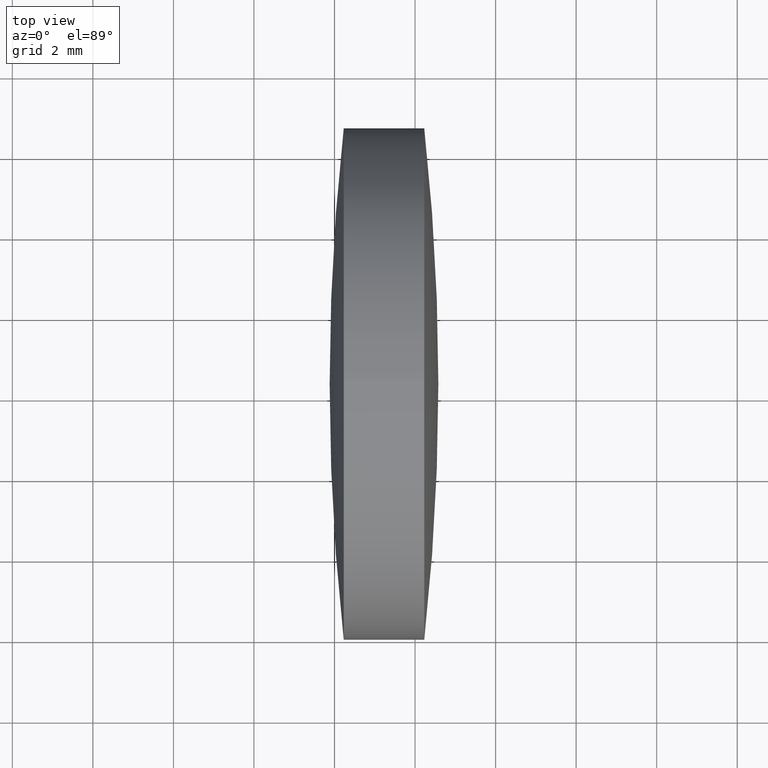
[diagram: clean part render]
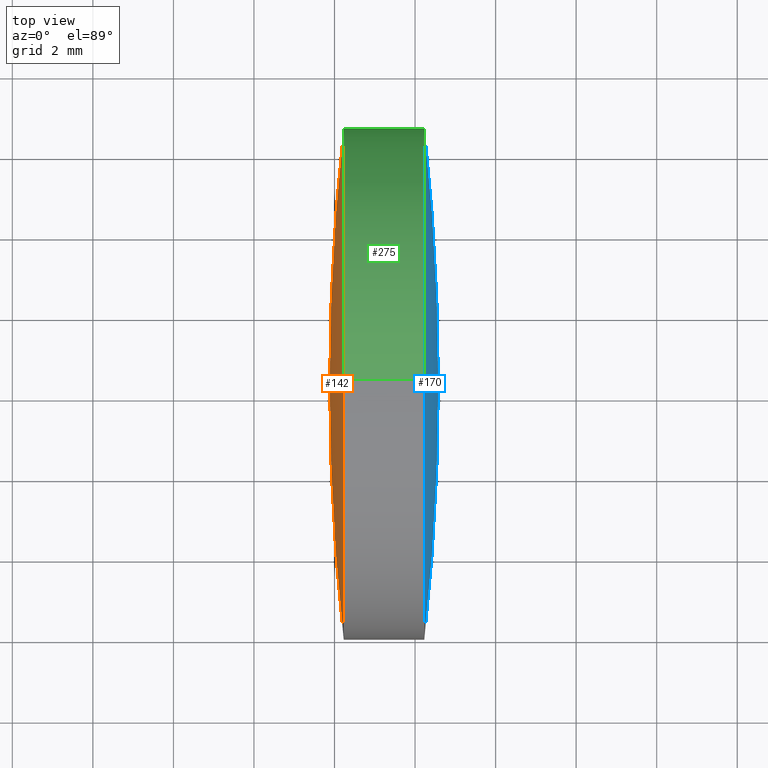
[diagram: same view with three faces highlighted in distinct colors, each labeled with its STEP entity id]
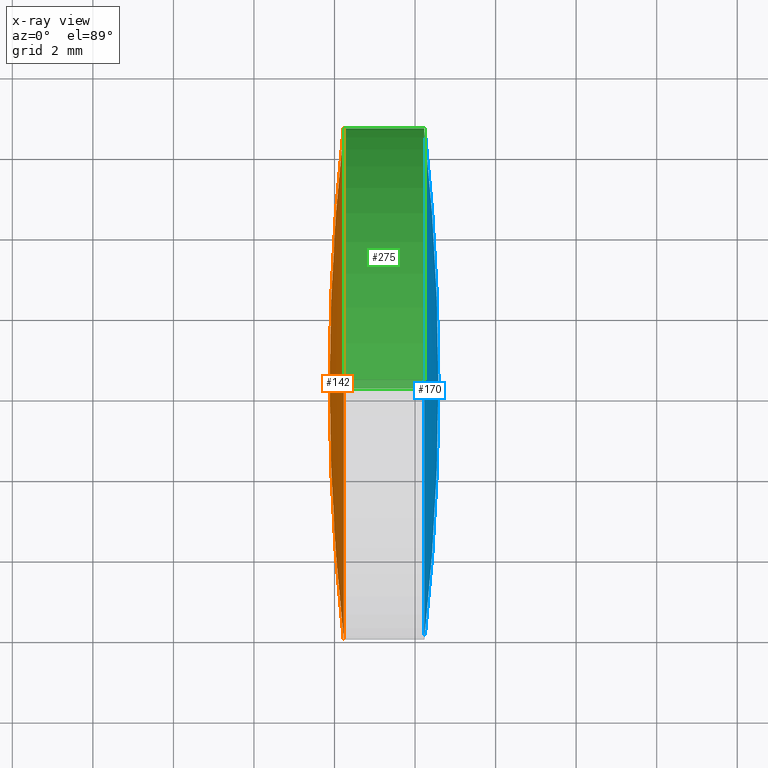
[diagram: x-ray of the same camera — body ghosted, the three highlighted faces saturated]
A machine part, top view with three faces highlighted in distinct colors.
The next image is the same camera in x-ray (body ghosted, the three faces saturated) — at least one of them is partly hidden behind the body in this view.
Their STEP definitions:

[orange] entity #142 — the highlighted spherical surface has radius 57.8123 mm.
#1 = EDGE_CURVE ( 'NONE', #294, #84, #189, .T. ) ;
#10 = ORIENTED_EDGE ( 'NONE', *, *, #180, .T. ) ;
#11 = CARTESIAN_POINT ( 'NONE',  ( 42.22906260161698100, 24.30805651159239000, 0.0000000000000000000 ) ) ;
#12 = CARTESIAN_POINT ( 'NONE',  ( 41.87926831590270600, 24.30805651159235800, 0.0000000000000000000 ) ) ;
#17 = DIRECTION ( 'NONE',  ( 0.0000000000000000000, 0.0000000000000000000, 1.000000000000000000 ) ) ;
#25 = CARTESIAN_POINT ( 'NONE',  ( 99.69161359154090000, 24.30805651159235500, 0.0000000000000000000 ) ) ;
#30 = CIRCLE ( 'NONE', #317, 6.349999999999997900 ) ;
#41 = CIRCLE ( 'NONE', #262, 57.81234527563818700 ) ;
#58 = AXIS2_PLACEMENT_3D ( 'NONE', #25, #132, #159 ) ;
#66 = DIRECTION ( 'NONE',  ( -0.0000000000000000000, 0.0000000000000000000, -1.000000000000000000 ) ) ;
#78 = VERTEX_POINT ( 'NONE', #222 ) ;
#83 = CARTESIAN_POINT ( 'NONE',  ( 42.22906260161698100, 30.65805651159237000, 0.0000000000000000000 ) ) ;
#84 = VERTEX_POINT ( 'NONE', #12 ) ;
#87 = DIRECTION ( 'NONE',  ( 0.0000000000000000000, 0.0000000000000000000, 1.000000000000000000 ) ) ;
#96 = AXIS2_PLACEMENT_3D ( 'NONE', #226, #66, #258 ) ;
#101 = CARTESIAN_POINT ( 'NONE',  ( 42.22906260161698100, 24.30805651159239000, 0.0000000000000000000 ) ) ;
#108 = ORIENTED_EDGE ( 'NONE', *, *, #151, .T. ) ;
#131 = DIRECTION ( 'NONE',  ( -1.000000000000000000, -0.0000000000000000000, -0.0000000000000000000 ) ) ;
#132 = DIRECTION ( 'NONE',  ( -0.0000000000000000000, 0.0000000000000000000, 1.000000000000000000 ) ) ;
#137 = VERTEX_POINT ( 'NONE', #207 ) ;
#142 = ADVANCED_FACE ( 'NONE', ( #224 ), #254, .T. ) ;
#151 = EDGE_CURVE ( 'NONE', #78, #137, #30, .T. ) ;
#154 = EDGE_LOOP ( 'NONE', ( #289, #108, #10, #274 ) ) ;
#158 = EDGE_CURVE ( 'NONE', #78, #84, #41, .T. ) ;
#159 = DIRECTION ( 'NONE',  ( 1.000000000000000000, 0.0000000000000000000, 0.0000000000000000000 ) ) ;
#171 = AXIS2_PLACEMENT_3D ( 'NONE', #11, #311, #17 ) ;
#176 = DIRECTION ( 'NONE',  ( 0.0000000000000000000, 1.000000000000000000, 1.224646799147353500E-016 ) ) ;
#179 = DIRECTION ( 'NONE',  ( 0.0000000000000000000, 1.224646799147353200E-016, -1.000000000000000000 ) ) ;
#180 = EDGE_CURVE ( 'NONE', #137, #294, #286, .T. ) ;
#189 = CIRCLE ( 'NONE', #58, 57.81234527563820800 ) ;
#207 = CARTESIAN_POINT ( 'NONE',  ( 42.22906260161698100, 24.30805651159239000, 6.349999999999997900 ) ) ;
#222 = CARTESIAN_POINT ( 'NONE',  ( 42.22906260161698100, 17.95805651159237500, -7.776507174585665500E-016 ) ) ;
#223 = CARTESIAN_POINT ( 'NONE',  ( 99.69161359154090000, 24.30805651159235500, 0.0000000000000000000 ) ) ;
#224 = FACE_OUTER_BOUND ( 'NONE', #154, .T. ) ;
#226 = CARTESIAN_POINT ( 'NONE',  ( 99.69161359154090000, 24.30805651159235500, 0.0000000000000000000 ) ) ;
#254 = SPHERICAL_SURFACE ( 'NONE', #96, 57.81234527563819400 ) ;
#258 = DIRECTION ( 'NONE',  ( 0.0000000000000000000, 1.000000000000000000, 0.0000000000000000000 ) ) ;
#262 = AXIS2_PLACEMENT_3D ( 'NONE', #223, #179, #176 ) ;
#274 = ORIENTED_EDGE ( 'NONE', *, *, #1, .T. ) ;
#286 = CIRCLE ( 'NONE', #171, 6.349999999999997900 ) ;
#289 = ORIENTED_EDGE ( 'NONE', *, *, #158, .F. ) ;
#294 = VERTEX_POINT ( 'NONE', #83 ) ;
#311 = DIRECTION ( 'NONE',  ( -1.000000000000000000, -0.0000000000000000000, -0.0000000000000000000 ) ) ;
#317 = AXIS2_PLACEMENT_3D ( 'NONE', #101, #131, #87 ) ;

[blue] entity #170 — the highlighted spherical surface has radius 57.8123 mm.
#2 = ORIENTED_EDGE ( 'NONE', *, *, #209, .F. ) ;
#20 = DIRECTION ( 'NONE',  ( 0.0000000000000000000, -1.000000000000000000, -1.224646799147353200E-016 ) ) ;
#39 = DIRECTION ( 'NONE',  ( -1.000000000000000000, -0.0000000000000000000, -0.0000000000000000000 ) ) ;
#40 = CARTESIAN_POINT ( 'NONE',  ( 44.22913117304555200, 17.95805651159243500, 0.0000000000000000000 ) ) ;
#46 = CARTESIAN_POINT ( 'NONE',  ( -13.23341981687683600, 24.30805651159243300, 0.0000000000000000000 ) ) ;
#50 = VERTEX_POINT ( 'NONE', #321 ) ;
#64 = CARTESIAN_POINT ( 'NONE',  ( 44.22913117304555200, 24.30805651159239000, 0.0000000000000000000 ) ) ;
#68 = DIRECTION ( 'NONE',  ( -1.000000000000000000, 0.0000000000000000000, 0.0000000000000000000 ) ) ;
#76 = AXIS2_PLACEMENT_3D ( 'NONE', #64, #336, #225 ) ;
#93 = DIRECTION ( 'NONE',  ( 0.0000000000000000000, -1.224646799147353200E-016, 1.000000000000000000 ) ) ;
#109 = SPHERICAL_SURFACE ( 'NONE', #134, 57.81234527563668000 ) ;
#119 = VERTEX_POINT ( 'NONE', #340 ) ;
#134 = AXIS2_PLACEMENT_3D ( 'NONE', #206, #256, #147 ) ;
#135 = EDGE_LOOP ( 'NONE', ( #2, #345, #263, #166 ) ) ;
#136 = CIRCLE ( 'NONE', #185, 6.349999999999997900 ) ;
#147 = DIRECTION ( 'NONE',  ( 0.0000000000000000000, -1.000000000000000000, 0.0000000000000000000 ) ) ;
#148 = CIRCLE ( 'NONE', #162, 57.81234527563668000 ) ;
#152 = CARTESIAN_POINT ( 'NONE',  ( -13.23341981687683600, 24.30805651159243300, 0.0000000000000000000 ) ) ;
#155 = EDGE_CURVE ( 'NONE', #215, #50, #160, .T. ) ;
#160 = CIRCLE ( 'NONE', #76, 6.349999999999997900 ) ;
#162 = AXIS2_PLACEMENT_3D ( 'NONE', #152, #93, #20 ) ;
#166 = ORIENTED_EDGE ( 'NONE', *, *, #284, .F. ) ;
#170 = ADVANCED_FACE ( 'NONE', ( #296 ), #109, .T. ) ;
#185 = AXIS2_PLACEMENT_3D ( 'NONE', #205, #39, #282 ) ;
#205 = CARTESIAN_POINT ( 'NONE',  ( 44.22913117304555200, 24.30805651159239000, 0.0000000000000000000 ) ) ;
#206 = CARTESIAN_POINT ( 'NONE',  ( -13.23341981687683600, 24.30805651159243300, 0.0000000000000000000 ) ) ;
#209 = EDGE_CURVE ( 'NONE', #119, #326, #266, .T. ) ;
#215 = VERTEX_POINT ( 'NONE', #227 ) ;
#219 = EDGE_CURVE ( 'NONE', #119, #50, #148, .T. ) ;
#225 = DIRECTION ( 'NONE',  ( 0.0000000000000000000, 0.0000000000000000000, 1.000000000000000000 ) ) ;
#227 = CARTESIAN_POINT ( 'NONE',  ( 44.22913117304555200, 24.30805651159239000, 6.349999999999997900 ) ) ;
#256 = DIRECTION ( 'NONE',  ( 0.0000000000000000000, 0.0000000000000000000, 1.000000000000000000 ) ) ;
#263 = ORIENTED_EDGE ( 'NONE', *, *, #155, .F. ) ;
#266 = CIRCLE ( 'NONE', #325, 57.81234527563668000 ) ;
#282 = DIRECTION ( 'NONE',  ( 0.0000000000000000000, 0.0000000000000000000, 1.000000000000000000 ) ) ;
#284 = EDGE_CURVE ( 'NONE', #326, #215, #136, .T. ) ;
#296 = FACE_OUTER_BOUND ( 'NONE', #135, .T. ) ;
#310 = DIRECTION ( 'NONE',  ( 0.0000000000000000000, 0.0000000000000000000, -1.000000000000000000 ) ) ;
#321 = CARTESIAN_POINT ( 'NONE',  ( 44.22913117304555200, 30.65805651159238800, 7.776507174585642900E-016 ) ) ;
#325 = AXIS2_PLACEMENT_3D ( 'NONE', #46, #310, #68 ) ;
#326 = VERTEX_POINT ( 'NONE', #40 ) ;
#336 = DIRECTION ( 'NONE',  ( -1.000000000000000000, -0.0000000000000000000, -0.0000000000000000000 ) ) ;
#340 = CARTESIAN_POINT ( 'NONE',  ( 44.57892545875984100, 24.30805651159242900, 0.0000000000000000000 ) ) ;
#345 = ORIENTED_EDGE ( 'NONE', *, *, #219, .T. ) ;

[green] entity #275 — the highlighted cylindrical surface (partial cylindrical patch) has radius 6.35 mm, axis along (-1, -0, -0).
#4 = VERTEX_POINT ( 'NONE', #194 ) ;
#9 = DIRECTION ( 'NONE',  ( -1.000000000000000000, -0.0000000000000000000, -0.0000000000000000000 ) ) ;
#11 = CARTESIAN_POINT ( 'NONE',  ( 42.22906260161698100, 24.30805651159239000, 0.0000000000000000000 ) ) ;
#14 = DIRECTION ( 'NONE',  ( -1.000000000000000000, -0.0000000000000000000, -0.0000000000000000000 ) ) ;
#15 = DIRECTION ( 'NONE',  ( -1.000000000000000000, -0.0000000000000000000, -0.0000000000000000000 ) ) ;
#17 = DIRECTION ( 'NONE',  ( 0.0000000000000000000, 0.0000000000000000000, 1.000000000000000000 ) ) ;
#24 = CIRCLE ( 'NONE', #277, 6.349999999999997900 ) ;
#29 = ORIENTED_EDGE ( 'NONE', *, *, #117, .T. ) ;
#50 = VERTEX_POINT ( 'NONE', #321 ) ;
#62 = DIRECTION ( 'NONE',  ( 0.0000000000000000000, 0.0000000000000000000, 1.000000000000000000 ) ) ;
#64 = CARTESIAN_POINT ( 'NONE',  ( 44.22913117304555200, 24.30805651159239000, 0.0000000000000000000 ) ) ;
#73 = DIRECTION ( 'NONE',  ( -1.000000000000000000, -0.0000000000000000000, -0.0000000000000000000 ) ) ;
#76 = AXIS2_PLACEMENT_3D ( 'NONE', #64, #336, #225 ) ;
#80 = ORIENTED_EDGE ( 'NONE', *, *, #238, .F. ) ;
#83 = CARTESIAN_POINT ( 'NONE',  ( 42.22906260161698100, 30.65805651159237000, 0.0000000000000000000 ) ) ;
#91 = CARTESIAN_POINT ( 'NONE',  ( 44.22913117304555200, 24.30805651159239000, 0.0000000000000000000 ) ) ;
#98 = DIRECTION ( 'NONE',  ( 0.0000000000000000000, 0.0000000000000000000, 1.000000000000000000 ) ) ;
#99 = EDGE_CURVE ( 'NONE', #294, #4, #24, .T. ) ;
#117 = EDGE_CURVE ( 'NONE', #50, #232, #177, .T. ) ;
#121 = EDGE_CURVE ( 'NONE', #232, #4, #233, .T. ) ;
#123 = DIRECTION ( 'NONE',  ( -1.000000000000000000, -0.0000000000000000000, -0.0000000000000000000 ) ) ;
#137 = VERTEX_POINT ( 'NONE', #207 ) ;
#146 = ORIENTED_EDGE ( 'NONE', *, *, #121, .T. ) ;
#149 = CARTESIAN_POINT ( 'NONE',  ( 39.65270067541857900, 24.30805651159239000, -6.349999999999997900 ) ) ;
#155 = EDGE_CURVE ( 'NONE', #215, #50, #160, .T. ) ;
#160 = CIRCLE ( 'NONE', #76, 6.349999999999997900 ) ;
#167 = VECTOR ( 'NONE', #14, 1000.000000000000000 ) ;
#171 = AXIS2_PLACEMENT_3D ( 'NONE', #11, #311, #17 ) ;
#177 = CIRCLE ( 'NONE', #295, 6.349999999999997900 ) ;
#180 = EDGE_CURVE ( 'NONE', #137, #294, #286, .T. ) ;
#182 = DIRECTION ( 'NONE',  ( 0.0000000000000000000, 0.0000000000000000000, 1.000000000000000000 ) ) ;
#183 = CARTESIAN_POINT ( 'NONE',  ( 39.65270067541857900, 24.30805651159239000, 6.349999999999997900 ) ) ;
#194 = CARTESIAN_POINT ( 'NONE',  ( 42.22906260161698100, 24.30805651159239000, -6.349999999999997900 ) ) ;
#207 = CARTESIAN_POINT ( 'NONE',  ( 42.22906260161698100, 24.30805651159239000, 6.349999999999997900 ) ) ;
#210 = FACE_OUTER_BOUND ( 'NONE', #230, .T. ) ;
#211 = AXIS2_PLACEMENT_3D ( 'NONE', #251, #9, #62 ) ;
#215 = VERTEX_POINT ( 'NONE', #227 ) ;
#216 = CYLINDRICAL_SURFACE ( 'NONE', #211, 6.349999999999997900 ) ;
#225 = DIRECTION ( 'NONE',  ( 0.0000000000000000000, 0.0000000000000000000, 1.000000000000000000 ) ) ;
#227 = CARTESIAN_POINT ( 'NONE',  ( 44.22913117304555200, 24.30805651159239000, 6.349999999999997900 ) ) ;
#230 = EDGE_LOOP ( 'NONE', ( #29, #146, #269, #241, #80, #343 ) ) ;
#232 = VERTEX_POINT ( 'NONE', #341 ) ;
#233 = LINE ( 'NONE', #149, #167 ) ;
#238 = EDGE_CURVE ( 'NONE', #215, #137, #271, .T. ) ;
#241 = ORIENTED_EDGE ( 'NONE', *, *, #180, .F. ) ;
#251 = CARTESIAN_POINT ( 'NONE',  ( 39.65270067541857900, 24.30805651159239000, 0.0000000000000000000 ) ) ;
#269 = ORIENTED_EDGE ( 'NONE', *, *, #99, .F. ) ;
#271 = LINE ( 'NONE', #183, #339 ) ;
#275 = ADVANCED_FACE ( 'NONE', ( #210 ), #216, .T. ) ;
#277 = AXIS2_PLACEMENT_3D ( 'NONE', #309, #73, #98 ) ;
#286 = CIRCLE ( 'NONE', #171, 6.349999999999997900 ) ;
#294 = VERTEX_POINT ( 'NONE', #83 ) ;
#295 = AXIS2_PLACEMENT_3D ( 'NONE', #91, #123, #182 ) ;
#309 = CARTESIAN_POINT ( 'NONE',  ( 42.22906260161698100, 24.30805651159239000, 0.0000000000000000000 ) ) ;
#311 = DIRECTION ( 'NONE',  ( -1.000000000000000000, -0.0000000000000000000, -0.0000000000000000000 ) ) ;
#321 = CARTESIAN_POINT ( 'NONE',  ( 44.22913117304555200, 30.65805651159238800, 7.776507174585642900E-016 ) ) ;
#336 = DIRECTION ( 'NONE',  ( -1.000000000000000000, -0.0000000000000000000, -0.0000000000000000000 ) ) ;
#339 = VECTOR ( 'NONE', #15, 1000.000000000000000 ) ;
#341 = CARTESIAN_POINT ( 'NONE',  ( 44.22913117304555200, 24.30805651159239000, -6.349999999999997900 ) ) ;
#343 = ORIENTED_EDGE ( 'NONE', *, *, #155, .T. ) ;